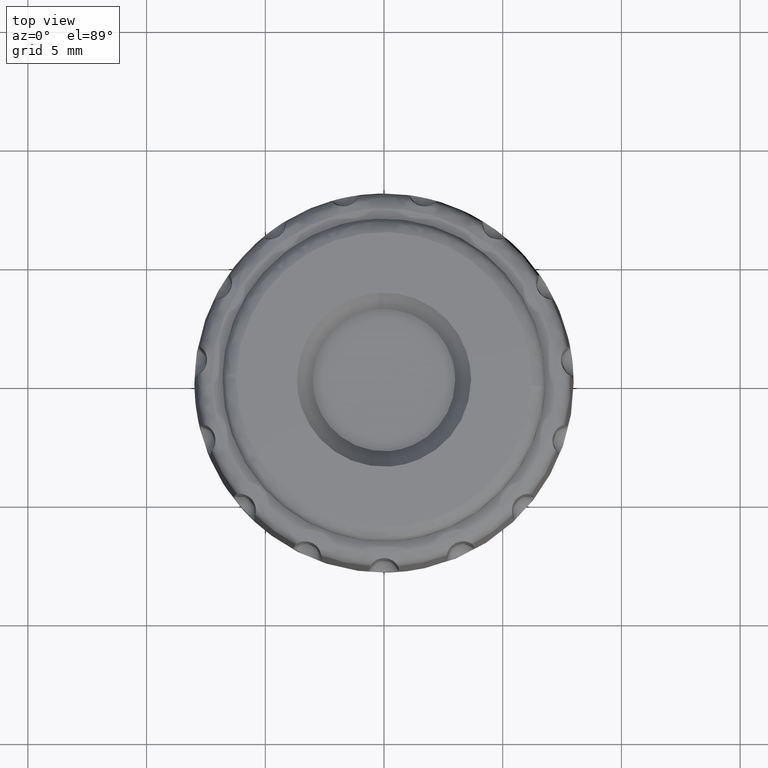
[diagram: clean part render]
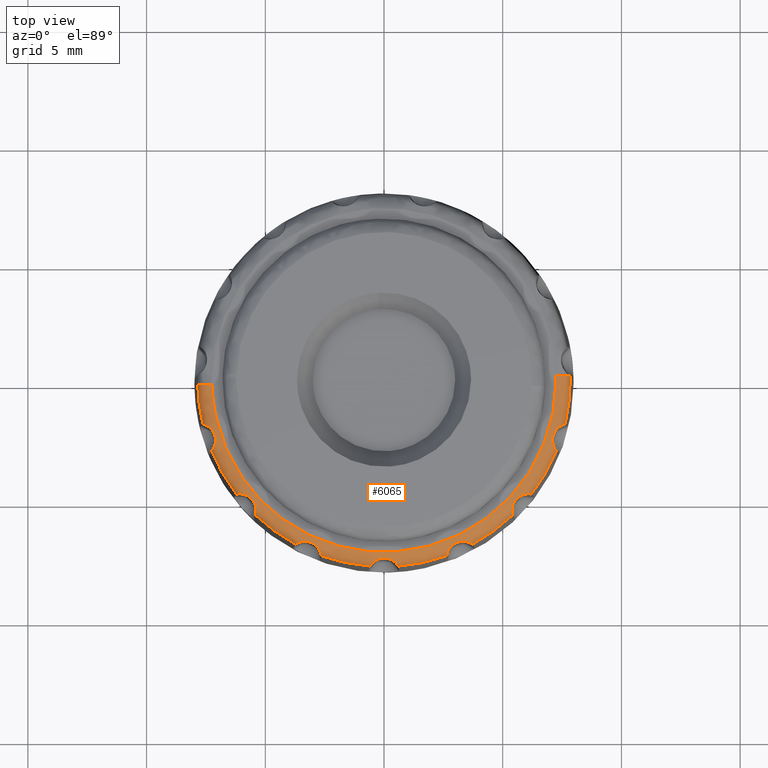
[diagram: same view with one face highlighted and labeled with its STEP entity id]
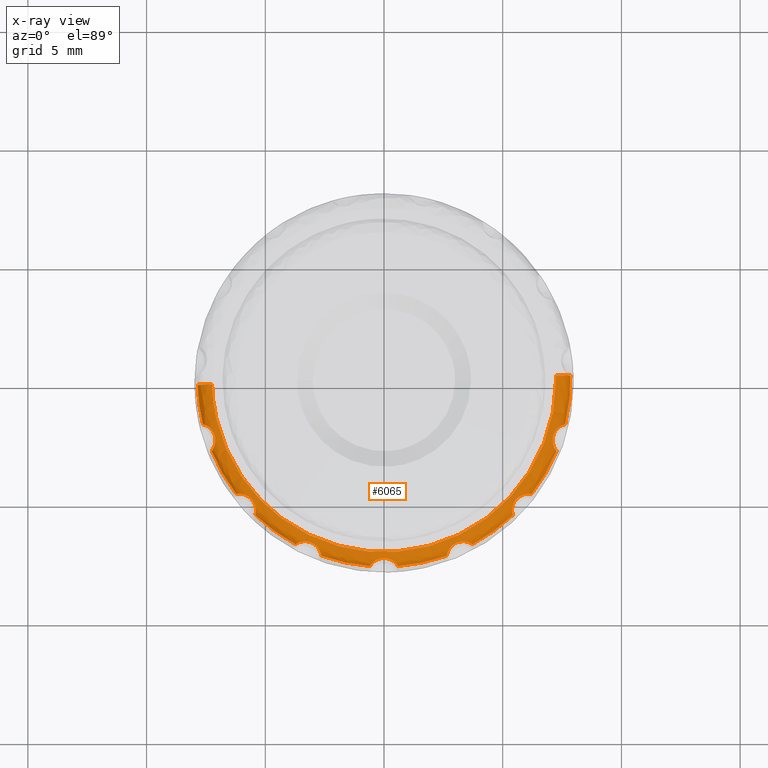
[diagram: x-ray of the same camera — body ghosted, the highlighted face saturated]
A machine part, top view. The second image highlights one B-rep face of the part: STEP entity #6065.
The next image is the same camera in x-ray: the body ghosted, the highlighted face saturated — about 0% of this face is hidden behind the body in this view.
In plain terms, the highlighted face is a freeform B-spline surface patch.
Its self-contained STEP definition (entity closure, byte-faithful):
#4025=CARTESIAN_POINT('',(2.642453804198855,-7.390828693639440,9.412215999999900));
#4026=VERTEX_POINT('',#4025);
#4035=CARTESIAN_POINT('',(3.724309383389160,-6.909155556422830,9.412215999999900));
#4036=VERTEX_POINT('',#4035);
#4044=CARTESIAN_POINT('',(3.724309383389164,-6.909155556422835,9.412215999999901));
#4045=CARTESIAN_POINT('',(3.723510274534049,-6.908621269323681,9.453916978650060));
#4046=CARTESIAN_POINT('',(3.718726594195361,-6.905366586933253,9.494705356962379));
#4047=CARTESIAN_POINT('',(3.705373625240378,-6.896908159288148,9.554538196299594));
#4048=CARTESIAN_POINT('',(3.699834817558524,-6.893467192058466,9.574371121964862));
#4049=CARTESIAN_POINT('',(3.686627218761194,-6.885606921782928,9.612979769021209));
#4050=CARTESIAN_POINT('',(3.671397228896427,-6.876832845626104,9.650306229437662));
#4051=CARTESIAN_POINT('',(3.651951550260185,-6.866698937473784,9.685106089512372));
#4052=CARTESIAN_POINT('',(3.630220293633142,-6.856143162979870,9.718620688036365));
#4053=CARTESIAN_POINT('',(3.618105851194550,-6.850612537686261,9.734842281239374));
#4054=CARTESIAN_POINT('',(3.579028101902881,-6.834286826794213,9.780309983706943));
#4055=CARTESIAN_POINT('',(3.549274123093765,-6.823691731197052,9.806636376722524));
#4056=CARTESIAN_POINT('',(3.498971653221827,-6.810266901760172,9.840786535082380));
#4057=CARTESIAN_POINT('',(3.481278359801497,-6.806225675381493,9.851235461969329));
#4058=CARTESIAN_POINT('',(3.445064722944861,-6.799493875725817,9.869958542599807));
#4059=CARTESIAN_POINT('',(3.426424738211345,-6.796768245783723,9.878318822856283));
#4060=CARTESIAN_POINT('',(3.369045689262734,-6.790830005906769,9.900807544248762));
#4061=CARTESIAN_POINT('',(3.328607685430845,-6.789939921267088,9.912355600197691));
#4062=CARTESIAN_POINT('',(3.268232318098853,-6.793992601597012,9.925299691225188));
#4063=CARTESIAN_POINT('',(3.248045600386612,-6.796220312930737,9.928924707190696));
#4064=CARTESIAN_POINT('',(3.207599352071071,-6.802501284099119,9.935012990686717));
#4065=CARTESIAN_POINT('',(3.187239194634238,-6.806583490673257,9.937483331904756));
#4066=CARTESIAN_POINT('',(3.127143353600776,-6.821443730096823,9.943261753614442));
#4067=CARTESIAN_POINT('',(3.088234823685648,-6.834796148260670,9.945034975578093));
#4068=CARTESIAN_POINT('',(3.031627120004612,-6.860002412020676,9.945033646851440));
#4069=CARTESIAN_POINT('',(3.012955831566789,-6.869328219154999,9.944571324500886));
#4070=CARTESIAN_POINT('',(2.976739288803275,-6.889482747862661,9.942692276019685));
#4071=CARTESIAN_POINT('',(2.959227066449698,-6.900279464710386,9.941283351151188));
#4072=CARTESIAN_POINT('',(2.908428858548818,-6.934736094161994,9.935529924069950));
#4073=CARTESIAN_POINT('',(2.876867819764530,-6.960454798565072,9.929712001450536));
#4074=CARTESIAN_POINT('',(2.818455040349895,-7.017159732418604,9.912308955185338));
#4075=CARTESIAN_POINT('',(2.792560827800090,-7.047269325278182,9.900945160164982));
#4076=CARTESIAN_POINT('',(2.758760807448442,-7.093530916484400,9.878688632862495));
#4077=CARTESIAN_POINT('',(2.748308400199337,-7.109162337772972,9.870385579118487));
#4078=CARTESIAN_POINT('',(2.728981044176840,-7.140652715282258,9.851679695909549));
#4079=CARTESIAN_POINT('',(2.720091961753896,-7.156565901277528,9.841217255451330));
#4080=CARTESIAN_POINT('',(2.696436268701589,-7.202751598737613,9.807307234463059));
#4081=CARTESIAN_POINT('',(2.684334602928209,-7.231978501559123,9.781090340372819));
#4082=CARTESIAN_POINT('',(2.670207384553471,-7.272131818676863,9.735580212510055));
#4083=CARTESIAN_POINT('',(2.666195192812919,-7.284849330891710,9.719398916058831));
#4084=CARTESIAN_POINT('',(2.659456589247657,-7.308136376050923,9.685907587720942));
#4085=CARTESIAN_POINT('',(2.656692187824883,-7.318811999204200,9.668484688392208));
#4086=CARTESIAN_POINT('',(2.649761278270073,-7.347836926562872,9.614197892450914));
#4087=CARTESIAN_POINT('',(2.646939703010941,-7.363180609904086,9.575022528015021));
#4088=CARTESIAN_POINT('',(2.643388591535680,-7.384043697869929,9.495266763563880));
#4089=CARTESIAN_POINT('',(2.642591634739467,-7.389876122439570,9.453970005060405));
#4090=CARTESIAN_POINT('',(2.642453804198851,-7.390828693639467,9.412215999999901));
#4091=B_SPLINE_CURVE_WITH_KNOTS('',3,(#4044,#4045,#4046,#4047,#4048,#4049,#4050,#4051,#4052,#4053,#4054,#4055,#4056,#4057,#4058,#4059,#4060,#4061,#4062,#4063,#4064,#4065,#4066,#4067,#4068,#4069,#4070,#4071,#4072,#4073,#4074,#4075,#4076,#4077,#4078,#4079,#4080,#4081,#4082,#4083,#4084,#4085,#4086,#4087,#4088,#4089,#4090),.UNSPECIFIED.,.F.,.U.,(4,2,2,1,2,2,2,2,2,2,2,2,2,2,2,2,2,2,2,2,2,2,2,4),(0.0,0.062499999999998,0.093749999999998,0.124999999999999,0.156249999999999,0.187499999999999,0.249999999999998,0.281249999999998,0.312499999999998,0.374999999999997,0.406249999999996,0.437499999999996,0.499999999999996,0.531249999999995,0.562499999999995,0.624999999999994,0.687499999999994,0.718749999999994,0.749999999999995,0.812499999999997,0.843749999999997,0.874999999999998,0.937499999999999,1.0),.UNSPECIFIED.);
#4092=EDGE_CURVE('',#4036,#4026,#4091,.T.);
#4115=CARTESIAN_POINT('',(5.420122522255480,-5.677075191486190,9.412215999999900));
#4116=VERTEX_POINT('',#4115);
#4125=CARTESIAN_POINT('',(6.212532657558819,-4.797014578340810,9.412215999999900));
#4126=VERTEX_POINT('',#4125);
#4134=CARTESIAN_POINT('',(6.212532657558823,-4.797014578340805,9.412215999999900));
#4135=CARTESIAN_POINT('',(6.211585321152918,-4.796851509641475,9.453916978650057));
#4136=CARTESIAN_POINT('',(6.205891413118938,-4.795823907410137,9.494705356962378));
#4137=CARTESIAN_POINT('',(6.190252516518003,-4.793527891024000,9.554538196299596));
#4138=CARTESIAN_POINT('',(6.183792996459554,-4.792637247084588,9.574371121964861));
#4139=CARTESIAN_POINT('',(6.168530194626346,-4.790828547276444,9.612979769021205));
#4140=CARTESIAN_POINT('',(6.151048168283324,-4.789007624810040,9.650306229437661));
#4141=CARTESIAN_POINT('',(6.129161825111301,-4.787659109100158,9.685106089512374));
#4142=CARTESIAN_POINT('',(6.105015914048081,-4.786854827629644,9.718620688036369));
#4143=CARTESIAN_POINT('',(6.091699312220396,-4.786729737664953,9.734842281239375));
#4144=CARTESIAN_POINT('',(6.049359747016037,-4.787709811202587,9.780309983706941));
#4145=CARTESIAN_POINT('',(6.017868721211917,-4.790132743205477,9.806636376722523));
#4146=CARTESIAN_POINT('',(5.966454758293185,-4.798328408987923,9.840786535082374));
#4147=CARTESIAN_POINT('',(5.948647415607132,-4.801833075757119,9.851235461969331));
#4148=CARTESIAN_POINT('',(5.912826542558228,-4.810412683848551,9.869958542599814));
#4149=CARTESIAN_POINT('',(5.894689455601482,-4.815504261813231,9.878318822856288));
#4150=CARTESIAN_POINT('',(5.839855786317290,-4.833417571499484,9.900807544248762));
#4151=CARTESIAN_POINT('',(5.802551801562135,-4.849052056651255,9.912355600197691));
#4152=CARTESIAN_POINT('',(5.749044532575349,-4.877311238591019,9.925299691225190));
#4153=CARTESIAN_POINT('',(5.731509140134236,-4.887557031957877,9.928924707190696));
#4154=CARTESIAN_POINT('',(5.697114354835170,-4.909745955903210,9.935012990686715));
#4155=CARTESIAN_POINT('',(5.680174808490173,-4.921756459264525,9.937483331904756));
#4156=CARTESIAN_POINT('',(5.631318729789282,-4.959775144134169,9.943261753614438));
#4157=CARTESIAN_POINT('',(5.601204936762674,-4.987798709940992,9.945034975578093));
#4158=CARTESIAN_POINT('',(5.559743537303516,-5.033850205070541,9.945033646851440));
#4159=CARTESIAN_POINT('',(5.546479614050590,-5.049964050998053,9.944571324500885));
#4160=CARTESIAN_POINT('',(5.521591741266795,-5.083106724177308,9.942692276019681));
#4161=CARTESIAN_POINT('',(5.509984950449341,-5.100092878343893,9.941283351151194));
#4162=CARTESIAN_POINT('',(5.477593252159962,-5.152232068220954,9.935529924069952));
#4163=CARTESIAN_POINT('',(5.459221548033262,-5.188564304771947,9.929712001450543));
#4164=CARTESIAN_POINT('',(5.428922793172160,-5.264125457331597,9.912308955185337));
#4165=CARTESIAN_POINT('',(5.417513927642138,-5.302164064207536,9.900945160164982));
#4166=CARTESIAN_POINT('',(5.405452356892223,-5.358173837531015,9.878688632862497));
#4167=CARTESIAN_POINT('',(5.402261479549792,-5.376705228482249,9.870385579118485));
#4168=CARTESIAN_POINT('',(5.397413351684516,-5.413334263723436,9.851679695909553));
#4169=CARTESIAN_POINT('',(5.395765246666782,-5.431487198050766,9.841217255451332));
#4170=CARTESIAN_POINT('',(5.392940111274488,-5.483301569355208,9.807307234463059));
#4171=CARTESIAN_POINT('',(5.393772341818429,-5.514923864581051,9.781090340372817));
#4172=CARTESIAN_POINT('',(5.397198311055893,-5.557351802420985,9.735580212510056));
#4173=CARTESIAN_POINT('',(5.398705669742660,-5.570601733337298,9.719398916058825));
#4174=CARTESIAN_POINT('',(5.402021343639976,-5.594616344657570,9.685907587720941));
#4175=CARTESIAN_POINT('',(5.403838104401206,-5.605493395051565,9.668484688392208));
#4176=CARTESIAN_POINT('',(5.409311904979462,-5.634828040484269,9.614197892450919));
#4177=CARTESIAN_POINT('',(5.412975105972709,-5.649992830753231,9.575022528015019));
#4178=CARTESIAN_POINT('',(5.418216786578324,-5.670496577157455,9.495266763563880));
#4179=CARTESIAN_POINT('',(5.419860991107655,-5.676148913662064,9.453970005060398));
#4180=CARTESIAN_POINT('',(5.420122522255488,-5.677075191486215,9.412215999999900));
#4181=B_SPLINE_CURVE_WITH_KNOTS('',3,(#4134,#4135,#4136,#4137,#4138,#4139,#4140,#4141,#4142,#4143,#4144,#4145,#4146,#4147,#4148,#4149,#4150,#4151,#4152,#4153,#4154,#4155,#4156,#4157,#4158,#4159,#4160,#4161,#4162,#4163,#4164,#4165,#4166,#4167,#4168,#4169,#4170,#4171,#4172,#4173,#4174,#4175,#4176,#4177,#4178,#4179,#4180),.UNSPECIFIED.,.F.,.U.,(4,2,2,1,2,2,2,2,2,2,2,2,2,2,2,2,2,2,2,2,2,2,2,4),(0.0,0.062499999999999,0.093750000000000,0.125000000000001,0.156250000000002,0.187500000000003,0.250000000000002,0.281250000000002,0.312500000000002,0.375000000000004,0.406250000000004,0.437500000000005,0.500000000000006,0.531250000000006,0.562500000000005,0.625000000000003,0.687500000000001,0.718750000000001,0.750000000000000,0.812499999999999,0.843750000000000,0.875000000000000,0.937500000000000,1.0),.UNSPECIFIED.);
#4182=EDGE_CURVE('',#4126,#4116,#4181,.T.);
#4205=CARTESIAN_POINT('',(7.260602815946850,-2.981703814115975,9.412215999999900));
#4206=VERTEX_POINT('',#4205);
#4215=CARTESIAN_POINT('',(7.626552596149190,-1.855426200154325,9.412215999999900));
#4216=VERTEX_POINT('',#4215);
#4224=CARTESIAN_POINT('',(7.626552596149193,-1.855426200154326,9.412215999999900));
#4225=CARTESIAN_POINT('',(7.625620835263364,-1.855662545914371,9.453916978650060));
#4226=CARTESIAN_POINT('',(7.620001227960693,-1.857039705603392,9.494705356962383));
#4227=CARTESIAN_POINT('',(7.604780511011022,-1.861303102568037,9.554538196299596));
#4228=CARTESIAN_POINT('',(7.598517188276984,-1.863116782347265,9.574371121964864));
#4229=CARTESIAN_POINT('',(7.583838260503060,-1.867672393634866,9.612979769021203));
#4230=CARTESIAN_POINT('',(7.567126998855718,-1.873119478895888,9.650306229437662));
#4231=CARTESIAN_POINT('',(7.546584338713535,-1.880789526245558,9.685106089512372));
#4232=CARTESIAN_POINT('',(7.524198820595683,-1.889875805371366,9.718620688036364));
#4233=CARTESIAN_POINT('',(7.511982620812447,-1.895177879926893,9.734842281239375));
#4234=CARTESIAN_POINT('',(7.473702135162109,-1.913294274275865,9.780309983706944));
#4235=CARTESIAN_POINT('',(7.445919146811503,-1.928316286923864,9.806636376722523));
#4236=CARTESIAN_POINT('',(7.402283632115815,-1.956715342856565,9.840786535082382));
#4237=CARTESIAN_POINT('',(7.387441291489088,-1.967159914050338,9.851235461969329));
#4238=CARTESIAN_POINT('',(7.358206936620483,-1.989567437706576,9.869958542599807));
#4239=CARTESIAN_POINT('',(7.343708814545589,-2.001595843492402,9.878318822856285));
#4240=CARTESIAN_POINT('',(7.300901764493307,-2.040263328759806,9.900807544248766));
#4241=CARTESIAN_POINT('',(7.273181996675119,-2.069719039185449,9.912355600197698));
#4242=CARTESIAN_POINT('',(7.235794718939620,-2.117298453451055,9.925299691225185));
#4243=CARTESIAN_POINT('',(7.223942680426749,-2.133790738097808,9.928924707190696));
#4244=CARTESIAN_POINT('',(7.201546528989185,-2.168050948289898,9.935012990686719));
#4245=CARTESIAN_POINT('',(7.190956595190020,-2.185913023295222,9.937483331904756));
#4246=CARTESIAN_POINT('',(7.161787938672625,-2.240516377608079,9.943261753614440));
#4247=CARTESIAN_POINT('',(7.145675830924058,-2.278365561943771,9.945034975578089));
#4248=CARTESIAN_POINT('',(7.126529788318251,-2.337299566570263,9.945033646851439));
#4249=CARTESIAN_POINT('',(7.120966683079619,-2.357415220940403,9.944571324500885));
#4250=CARTESIAN_POINT('',(7.111710819579084,-2.397815369306824,9.942692276019681));
#4251=CARTESIAN_POINT('',(7.108016379874477,-2.418053900422498,9.941283351151192));
#4252=CARTESIAN_POINT('',(7.099632010100171,-2.478860311125598,9.935529924069957));
#4253=CARTESIAN_POINT('',(7.097626275176259,-2.519523906056831,9.929712001450543));
#4254=CARTESIAN_POINT('',(7.100680474839721,-2.600876067593521,9.912308955185335));
#4255=CARTESIAN_POINT('',(7.105729652825915,-2.640266467787070,9.900945160164982));
#4256=CARTESIAN_POINT('',(7.117492086836324,-2.696339824587368,9.878688632862499));
#4257=CARTESIAN_POINT('',(7.122114471081282,-2.714566939353395,9.870385579118485));
#4258=CARTESIAN_POINT('',(7.132583856724989,-2.750001139368933,9.851679695909551));
#4259=CARTESIAN_POINT('',(7.138461701442597,-2.767255014768903,9.841217255451333));
#4260=CARTESIAN_POINT('',(7.156955615285195,-2.815738884400379,9.807307234463064));
#4261=CARTESIAN_POINT('',(7.170577841924834,-2.844288789906472,9.781090340372815));
#4262=CARTESIAN_POINT('',(7.190964617569385,-2.881655172570360,9.735580212510055));
#4263=CARTESIAN_POINT('',(7.197730890672610,-2.893146488760872,9.719398916058827));
#4264=CARTESIAN_POINT('',(7.210527531893706,-2.913736321779032,9.685907587720941));
#4265=CARTESIAN_POINT('',(7.216611320398571,-2.922934058585719,9.668484688392210));
#4266=CARTESIAN_POINT('',(7.233543361261990,-2.947506195400254,9.614197892450916));
#4267=CARTESIAN_POINT('',(7.243057937776749,-2.959869962591664,9.575022528015019));
#4268=CARTESIAN_POINT('',(7.256186076267357,-2.976469083410297,9.495266763563878));
#4269=CARTESIAN_POINT('',(7.259987144221982,-2.980963991518357,9.453970005060404));
#4270=CARTESIAN_POINT('',(7.260602815946864,-2.981703814115995,9.412215999999900));
#4271=B_SPLINE_CURVE_WITH_KNOTS('',3,(#4224,#4225,#4226,#4227,#4228,#4229,#4230,#4231,#4232,#4233,#4234,#4235,#4236,#4237,#4238,#4239,#4240,#4241,#4242,#4243,#4244,#4245,#4246,#4247,#4248,#4249,#4250,#4251,#4252,#4253,#4254,#4255,#4256,#4257,#4258,#4259,#4260,#4261,#4262,#4263,#4264,#4265,#4266,#4267,#4268,#4269,#4270),.UNSPECIFIED.,.F.,.U.,(4,2,2,1,2,2,2,2,2,2,2,2,2,2,2,2,2,2,2,2,2,2,2,4),(0.0,0.062499999999998,0.093749999999998,0.124999999999998,0.156249999999998,0.187499999999999,0.249999999999998,0.281249999999997,0.312499999999997,0.374999999999998,0.406249999999997,0.437499999999997,0.499999999999997,0.531249999999996,0.562499999999996,0.624999999999996,0.687499999999996,0.718749999999997,0.749999999999997,0.812499999999997,0.843749999999998,0.874999999999998,0.937499999999999,1.0),.UNSPECIFIED.);
#4272=EDGE_CURVE('',#4216,#4206,#4271,.T.);
#4390=CARTESIAN_POINT('',(7.846542354548671,0.197246650876180,9.411476093503897));
#4391=VERTEX_POINT('',#4390);
#5112=CARTESIAN_POINT('',(-7.626552596149190,-1.855426200154335,9.412215999999900));
#5113=VERTEX_POINT('',#5112);
#5122=CARTESIAN_POINT('',(-7.260602815946850,-2.981703814115980,9.412215999999900));
#5123=VERTEX_POINT('',#5122);
#5131=CARTESIAN_POINT('',(-7.260602815946850,-2.981703814115980,9.412215999999900));
#5132=CARTESIAN_POINT('',(-7.259987926107719,-2.980964931072205,9.453916978649888));
#5133=CARTESIAN_POINT('',(-7.256251042453431,-2.976547663183666,9.494705356962120));
#5134=CARTESIAN_POINT('',(-7.246443185635092,-2.964151989633209,9.554538196299280));
#5135=CARTESIAN_POINT('',(-7.242442105328619,-2.959003203136056,9.574371121964544));
#5136=CARTESIAN_POINT('',(-7.233244324430353,-2.946689578919660,9.612979769020916));
#5137=CARTESIAN_POINT('',(-7.228084914656790,-2.939574842393430,9.631642851175347));
#5138=CARTESIAN_POINT('',(-7.216870835920537,-2.923320225566211,9.667706159474747));
#5139=CARTESIAN_POINT('',(-7.210815325696456,-2.914180289902235,9.685106089512116));
#5140=CARTESIAN_POINT('',(-7.198045841979595,-2.893671458259246,9.718620688036117));
#5141=CARTESIAN_POINT('',(-7.191279209978571,-2.882201487766746,9.734842281239136));
#5142=CARTESIAN_POINT('',(-7.170958195957556,-2.845044311945780,9.780309983706756));
#5143=CARTESIAN_POINT('',(-7.157311003721637,-2.816560817606747,9.806636376722356));
#5144=CARTESIAN_POINT('',(-7.138701677030786,-2.767937186718697,9.840786535082231));
#5145=CARTESIAN_POINT('',(-7.132833136141676,-2.750763242194081,9.851235461969200));
#5146=CARTESIAN_POINT('',(-7.122352858178905,-2.715451652102273,9.869958542599699));
#5147=CARTESIAN_POINT('',(-7.117693750563284,-2.697198685064745,9.878318822856185));
#5148=CARTESIAN_POINT('',(-7.105790297175326,-2.640754679638803,9.900807544248686));
#5149=CARTESIAN_POINT('',(-7.100678166114259,-2.600631238602562,9.912355600197634));
#5150=CARTESIAN_POINT('',(-7.098397701070846,-2.540162993402981,9.925299691225147));
#5151=CARTESIAN_POINT('',(-7.098503122187911,-2.519854001400220,9.928924707190658));
#5152=CARTESIAN_POINT('',(-7.100521901357668,-2.478972781600853,9.935012990686694));
#5153=CARTESIAN_POINT('',(-7.102453529208297,-2.458297452456839,9.937483331904735));
#5154=CARTESIAN_POINT('',(-7.110950636773427,-2.396977504737727,9.943261753614433));
#5155=CARTESIAN_POINT('',(-7.120162860153449,-2.356886412068957,9.945034975578091));
#5156=CARTESIAN_POINT('',(-7.139313925088294,-2.297954039296090,9.945033646851439));
#5157=CARTESIAN_POINT('',(-7.146636963387716,-2.278410221841456,9.944571324500888));
#5158=CARTESIAN_POINT('',(-7.162895423918381,-2.240285355174884,9.942692276019690));
#5159=CARTESIAN_POINT('',(-7.171802469530512,-2.221740502387255,9.941283351151201));
#5160=CARTESIAN_POINT('',(-7.200760483352096,-2.167618873858381,9.935529924069970));
#5161=CARTESIAN_POINT('',(-7.223039271118207,-2.133542393098344,9.929712001450563));
#5162=CARTESIAN_POINT('',(-7.273327771343529,-2.069522325405766,9.912308955185376));
#5163=CARTESIAN_POINT('',(-7.300565738457672,-2.040622654590401,9.900945160165012));
#5164=CARTESIAN_POINT('',(-7.343040839641060,-2.002172141249679,9.878688632862533));
#5165=CARTESIAN_POINT('',(-7.357494056301074,-1.990143064935153,9.870385579118524));
#5166=CARTESIAN_POINT('',(-7.386791667403410,-1.967629945422433,9.851679695909603));
#5167=CARTESIAN_POINT('',(-7.401688517175248,-1.957126177445298,9.841217255451381));
#5168=CARTESIAN_POINT('',(-7.445148511309889,-1.928772352774199,9.807307234463101));
#5169=CARTESIAN_POINT('',(-7.472950337573418,-1.913681937954133,9.781090340372858));
#5170=CARTESIAN_POINT('',(-7.511406994191717,-1.895434945426389,9.735580212510104));
#5171=CARTESIAN_POINT('',(-7.523635450307031,-1.890115390883583,9.719398916058870));
#5172=CARTESIAN_POINT('',(-7.546090550721065,-1.880979543049183,9.685907587720978));
#5173=CARTESIAN_POINT('',(-7.556418733061124,-1.877114378824008,9.668484688392240));
#5174=CARTESIAN_POINT('',(-7.584560181505989,-1.867187506463672,9.614197892450942));
#5175=CARTESIAN_POINT('',(-7.599524875618601,-1.862777536448510,9.575022528015040));
#5176=CARTESIAN_POINT('',(-7.619902481180229,-1.857065091809382,9.495266763563883));
#5177=CARTESIAN_POINT('',(-7.625619650448626,-1.855662846448497,9.453970005060411));
#5178=CARTESIAN_POINT('',(-7.626552596149215,-1.855426200154325,9.412215999999900));
#5179=B_SPLINE_CURVE_WITH_KNOTS('',3,(#5131,#5132,#5133,#5134,#5135,#5136,#5137,#5138,#5139,#5140,#5141,#5142,#5143,#5144,#5145,#5146,#5147,#5148,#5149,#5150,#5151,#5152,#5153,#5154,#5155,#5156,#5157,#5158,#5159,#5160,#5161,#5162,#5163,#5164,#5165,#5166,#5167,#5168,#5169,#5170,#5171,#5172,#5173,#5174,#5175,#5176,#5177,#5178),.UNSPECIFIED.,.F.,.U.,(4,2,2,2,2,2,2,2,2,2,2,2,2,2,2,2,2,2,2,2,2,2,2,4),(0.0,0.062500000000002,0.093750000000001,0.125000000000000,0.156250000000000,0.187499999999999,0.249999999999998,0.281249999999998,0.312499999999997,0.374999999999996,0.406249999999995,0.437499999999994,0.499999999999993,0.531249999999993,0.562499999999992,0.624999999999991,0.687499999999990,0.718749999999990,0.749999999999990,0.812499999999993,0.843749999999994,0.874999999999995,0.937499999999998,1.0),.UNSPECIFIED.);
#5180=EDGE_CURVE('',#5123,#5113,#5179,.T.);
#5203=CARTESIAN_POINT('',(-6.212532657558811,-4.797014578340810,9.412215999999900));
#5204=VERTEX_POINT('',#5203);
#5213=CARTESIAN_POINT('',(-5.420122522255470,-5.677075191486190,9.412215999999900));
#5214=VERTEX_POINT('',#5213);
#5222=CARTESIAN_POINT('',(-5.420122522255473,-5.677075191486201,9.412215999999901));
#5223=CARTESIAN_POINT('',(-5.419861323244833,-5.676150090008798,9.453916978650058));
#5224=CARTESIAN_POINT('',(-5.418244174869260,-5.670594787480882,9.494705356962383));
#5225=CARTESIAN_POINT('',(-5.414326026472225,-5.655281561456332,9.554538196299598));
#5226=CARTESIAN_POINT('',(-5.412765057868344,-5.648950524966938,9.574371121964861));
#5227=CARTESIAN_POINT('',(-5.409370869086213,-5.633960394970606,9.612979769021207));
#5228=CARTESIAN_POINT('',(-5.405732552475167,-5.616764475224208,9.650306229437666));
#5229=CARTESIAN_POINT('',(-5.402103678257118,-5.595138986004929,9.685106089512372));
#5230=CARTESIAN_POINT('',(-5.398779867747020,-5.571209419075092,9.718620688036371));
#5231=CARTESIAN_POINT('',(-5.397263499113245,-5.557978842447334,9.734842281239374));
#5232=CARTESIAN_POINT('',(-5.393812514019264,-5.515768772230453,9.780309983706943));
#5233=CARTESIAN_POINT('',(-5.392930464413100,-5.484196992201785,9.806636376722523));
#5234=CARTESIAN_POINT('',(-5.395707010946468,-5.432208000001755,9.840786535082376));
#5235=CARTESIAN_POINT('',(-5.397331104618549,-5.414131870370502,9.851235461969333));
#5236=CARTESIAN_POINT('',(-5.402119411906450,-5.377610414562922,9.869958542599809));
#5237=CARTESIAN_POINT('',(-5.405287255846558,-5.359040469645984,9.878318822856283));
#5238=CARTESIAN_POINT('',(-5.417370755362449,-5.302634734205935,9.900807544248766));
#5239=CARTESIAN_POINT('',(-5.429020264968477,-5.263900855875553,9.912355600197692));
#5240=CARTESIAN_POINT('',(-5.451531607551925,-5.207732816445466,9.925299691225185));
#5241=CARTESIAN_POINT('',(-5.459888325766022,-5.189222507683309,9.928924707190694));
#5242=CARTESIAN_POINT('',(-5.478360462412588,-5.152696766495335,9.935012990686719));
#5243=CARTESIAN_POINT('',(-5.488534506231916,-5.134594577298195,9.937483331904755));
#5244=CARTESIAN_POINT('',(-5.521238069939995,-5.082032102603441,9.943261753614440));
#5245=CARTESIAN_POINT('',(-5.545960371212941,-5.049154015816825,9.945034975578091));
#5246=CARTESIAN_POINT('',(-5.587425695063333,-5.003106054225011,9.945033646851437));
#5247=CARTESIAN_POINT('',(-5.602064810142304,-4.988230436579360,9.944571324500885));
#5248=CARTESIAN_POINT('',(-5.632424433194018,-4.960014549470724,9.942692276019681));
#5249=CARTESIAN_POINT('',(-5.648104295423170,-4.946695805275946,9.941283351151192));
#5250=CARTESIAN_POINT('',(-5.696572006917852,-4.909031522705126,9.935529924069952));
#5251=CARTESIAN_POINT('',(-5.730784845675542,-4.886962707842144,9.929712001450543));
#5252=CARTESIAN_POINT('',(-5.802764984050822,-4.848931641570587,9.912308955185337));
#5253=CARTESIAN_POINT('',(-5.839402660276769,-4.833609157878088,9.900945160164980));
#5254=CARTESIAN_POINT('',(-5.893844828746500,-4.815759046141292,9.878688632862493));
#5255=CARTESIAN_POINT('',(-5.911941165294053,-4.810648590940463,9.870385579118485));
#5256=CARTESIAN_POINT('',(-5.947862775492144,-4.801998244862162,9.851679695909551));
#5257=CARTESIAN_POINT('',(-5.965743992261050,-4.798461670007127,9.841217255451335));
#5258=CARTESIAN_POINT('',(-6.016979211956980,-4.790235934394477,9.807307234463057));
#5259=CARTESIAN_POINT('',(-6.048515268720721,-4.787758175967467,9.781090340372815));
#5260=CARTESIAN_POINT('',(-6.091068893177456,-4.786730450244957,9.735580212510058));
#5261=CARTESIAN_POINT('',(-6.104403801472972,-4.786844556546039,9.719398916058829));
#5262=CARTESIAN_POINT('',(-6.128633440536924,-4.787631856417542,9.685907587720944));
#5263=CARTESIAN_POINT('',(-6.139640808521270,-4.788301703410661,9.668484688392210));
#5264=CARTESIAN_POINT('',(-6.169386923659636,-4.790679212529034,9.614197892450914));
#5265=CARTESIAN_POINT('',(-6.184851548391250,-4.792737193901361,9.575022528015019));
#5266=CARTESIAN_POINT('',(-6.205790877945978,-4.795806934929309,9.495266763563876));
#5267=CARTESIAN_POINT('',(-6.211584116532550,-4.796851302285497,9.453970005060404));
#5268=CARTESIAN_POINT('',(-6.212532657558839,-4.797014578340819,9.412215999999900));
#5269=B_SPLINE_CURVE_WITH_KNOTS('',3,(#5222,#5223,#5224,#5225,#5226,#5227,#5228,#5229,#5230,#5231,#5232,#5233,#5234,#5235,#5236,#5237,#5238,#5239,#5240,#5241,#5242,#5243,#5244,#5245,#5246,#5247,#5248,#5249,#5250,#5251,#5252,#5253,#5254,#5255,#5256,#5257,#5258,#5259,#5260,#5261,#5262,#5263,#5264,#5265,#5266,#5267,#5268),.UNSPECIFIED.,.F.,.U.,(4,2,2,1,2,2,2,2,2,2,2,2,2,2,2,2,2,2,2,2,2,2,2,4),(0.0,0.062500000000004,0.093750000000005,0.125000000000006,0.156250000000007,0.187500000000008,0.250000000000007,0.281250000000008,0.312500000000009,0.375000000000009,0.406250000000009,0.437500000000009,0.500000000000009,0.531250000000008,0.562500000000007,0.625000000000005,0.687500000000003,0.718750000000002,0.750000000000002,0.812500000000001,0.843750000000001,0.875000000000000,0.937500000000000,1.0),.UNSPECIFIED.);
#5270=EDGE_CURVE('',#5214,#5204,#5269,.T.);
#5293=CARTESIAN_POINT('',(-3.724309383389155,-6.909155556422840,9.412215999999900));
#5294=VERTEX_POINT('',#5293);
#5303=CARTESIAN_POINT('',(-2.642453804198845,-7.390828693639440,9.412215999999900));
#5304=VERTEX_POINT('',#5303);
#5312=CARTESIAN_POINT('',(-2.642453804198845,-7.390828693639446,9.412215999999901));
#5313=CARTESIAN_POINT('',(-2.642591459698558,-7.389877332178147,9.453916978650060));
#5314=CARTESIAN_POINT('',(-2.643373666247192,-7.384144557286298,9.494705356962381));
#5315=CARTESIAN_POINT('',(-2.646022709724599,-7.368561574683635,9.554538196299598));
#5316=CARTESIAN_POINT('',(-2.647171758475887,-7.362142981926691,9.574371121964861));
#5317=CARTESIAN_POINT('',(-2.650168047885569,-7.347068275807860,9.612979769021210));
#5318=CARTESIAN_POINT('',(-2.653838490944332,-7.329879184748728,9.650306229437664));
#5319=CARTESIAN_POINT('',(-2.659319228276000,-7.308647321185562,9.685106089512376));
#5320=CARTESIAN_POINT('',(-2.666015808005733,-7.285434658484356,9.718620688036369));
#5321=CARTESIAN_POINT('',(-2.670011896651767,-7.272731162616312,9.734842281239372));
#5322=CARTESIAN_POINT('',(-2.684027647158775,-7.232766702610471,9.780309983706941));
#5323=CARTESIAN_POINT('',(-2.696063254572437,-7.203565684479751,9.806636376722523));
#5324=CARTESIAN_POINT('',(-2.719745584210262,-7.157200700024327,9.840786535082374));
#5325=CARTESIAN_POINT('',(-2.728581491893197,-7.141347912316157,9.851235461969329));
#5326=CARTESIAN_POINT('',(-2.747810442601272,-7.109931482288943,9.869958542599811));
#5327=CARTESIAN_POINT('',(-2.758257489100896,-7.094255471671390,9.878318822856285));
#5328=CARTESIAN_POINT('',(-2.792238594679171,-7.047641070304843,9.900807544248766));
#5329=CARTESIAN_POINT('',(-2.818635438908930,-7.016994194129878,9.912355600197696));
#5330=CARTESIAN_POINT('',(-2.862046173477420,-6.974838324757351,9.925299691225188));
#5331=CARTESIAN_POINT('',(-2.877209236290922,-6.961327299781655,9.928924707190697));
#5332=CARTESIAN_POINT('',(-2.908940730173997,-6.935472669682409,9.935012990686722));
#5333=CARTESIAN_POINT('',(-2.925598005357369,-6.923073653397555,9.937483331904756));
#5334=CARTESIAN_POINT('',(-2.976853281940713,-6.888357181116953,9.943261753614442));
#5335=CARTESIAN_POINT('',(-3.012810950621428,-6.868377020105924,9.945034975578093));
#5336=CARTESIAN_POINT('',(-3.069420802192967,-6.843175580586980,9.945033646851442));
#5337=CARTESIAN_POINT('',(-3.088844758062140,-6.835540292181987,9.944571324500885));
#5338=CARTESIAN_POINT('',(-3.128056089000749,-6.822112167845642,9.942692276019685));
#5339=CARTESIAN_POINT('',(-3.147797577220421,-6.816322464111973,9.941283351151192));
#5340=CARTESIAN_POINT('',(-3.207394478755434,-6.801628024124946,9.935529924069956));
#5341=CARTESIAN_POINT('',(-3.247625657869611,-6.795382773737710,9.929712001450541));
#5342=CARTESIAN_POINT('',(-3.328851414550720,-6.789916625746922,9.912308955185344));
#5343=CARTESIAN_POINT('',(-3.368553812826189,-6.790820725808072,9.900945160164984));
#5344=CARTESIAN_POINT('',(-3.425549503062277,-6.796657462157654,9.878688632862499));
#5345=CARTESIAN_POINT('',(-3.444159938508239,-6.799349272201771,9.870385579118485));
#5346=CARTESIAN_POINT('',(-3.480494375061243,-6.806057422980751,9.851679695909551));
#5347=CARTESIAN_POINT('',(-3.498268134002125,-6.810099547169014,9.841217255451333));
#5348=CARTESIAN_POINT('',(-3.548419544316582,-6.823424205030685,9.807307234463059));
#5349=CARTESIAN_POINT('',(-3.578236960870012,-6.833987529938488,9.781090340372817));
#5350=CARTESIAN_POINT('',(-3.617529644909066,-6.850356774135229,9.735580212510056));
#5351=CARTESIAN_POINT('',(-3.629665278596659,-6.855884811264109,9.719398916058829));
#5352=CARTESIAN_POINT('',(-3.651479931597024,-6.866459127541335,9.685907587720944));
#5353=CARTESIAN_POINT('',(-3.661263211302368,-6.871548163122269,9.668484688392212));
#5354=CARTESIAN_POINT('',(-3.687470619591850,-6.885818960793788,9.614197892450918));
#5355=CARTESIAN_POINT('',(-3.700761200834669,-6.893989049878154,9.575022528015017));
#5356=CARTESIAN_POINT('',(-3.718641654074654,-6.905310190461725,9.495266763563885));
#5357=CARTESIAN_POINT('',(-3.723509258397861,-6.908620589931318,9.453970005060407));
#5358=CARTESIAN_POINT('',(-3.724309383389178,-6.909155556422850,9.412215999999900));
#5359=B_SPLINE_CURVE_WITH_KNOTS('',3,(#5312,#5313,#5314,#5315,#5316,#5317,#5318,#5319,#5320,#5321,#5322,#5323,#5324,#5325,#5326,#5327,#5328,#5329,#5330,#5331,#5332,#5333,#5334,#5335,#5336,#5337,#5338,#5339,#5340,#5341,#5342,#5343,#5344,#5345,#5346,#5347,#5348,#5349,#5350,#5351,#5352,#5353,#5354,#5355,#5356,#5357,#5358),.UNSPECIFIED.,.F.,.U.,(4,2,2,1,2,2,2,2,2,2,2,2,2,2,2,2,2,2,2,2,2,2,2,4),(0.0,0.062500000000004,0.093750000000005,0.125000000000006,0.156250000000007,0.187500000000007,0.250000000000007,0.281250000000007,0.312500000000007,0.375000000000008,0.406250000000008,0.437500000000008,0.500000000000009,0.531250000000009,0.562500000000009,0.625000000000009,0.687500000000010,0.718750000000009,0.750000000000008,0.812500000000006,0.843750000000005,0.875000000000004,0.937500000000002,1.0),.UNSPECIFIED.);
#5360=EDGE_CURVE('',#5304,#5294,#5359,.T.);
#5394=CARTESIAN_POINT('',(-6.212532657558810,-4.797014578340811,9.412215999999900));
#5395=CARTESIAN_POINT('',(-6.858861213916725,-3.959965368189105,9.412215999999900));
#5396=CARTESIAN_POINT('',(-7.260602815946842,-2.981703814115982,9.412215999999900));
#5404=(BOUNDED_CURVE()B_SPLINE_CURVE(2,(#5394,#5395,#5396),.UNSPECIFIED.,.F.,.U.)CURVE()GEOMETRIC_REPRESENTATION_ITEM()QUASI_UNIFORM_CURVE()RATIONAL_B_SPLINE_CURVE((1.0,0.991044904464576,1.0))REPRESENTATION_ITEM(''));
#5405=EDGE_CURVE('',#5204,#5123,#5404,.T.);
#5410=CARTESIAN_POINT('',(-7.846528199455451,-0.197246295044962,9.412216000908224));
#5411=VERTEX_POINT('',#5410);
#5412=CARTESIAN_POINT('',(-7.626552596149190,-1.855426200154335,9.412215999999900));
#5413=CARTESIAN_POINT('',(-7.825390208451688,-1.038123141556493,9.412216000454061));
#5414=CARTESIAN_POINT('',(-7.846528199455451,-0.197246295044962,9.412216000908224));
#5422=(BOUNDED_CURVE()B_SPLINE_CURVE(2,(#5412,#5413,#5414),.UNSPECIFIED.,.F.,.U.)B_SPLINE_CURVE_WITH_KNOTS((3,3),(0.0,0.894510632381245),.UNSPECIFIED.)CURVE()GEOMETRIC_REPRESENTATION_ITEM()RATIONAL_B_SPLINE_CURVE((1.0,0.993639392015280,0.998658046972042))REPRESENTATION_ITEM(''));
#5423=EDGE_CURVE('',#5113,#5411,#5422,.T.);
#5618=CARTESIAN_POINT('',(7.846542354548671,0.197246650876180,9.411476093503897));
#5619=CARTESIAN_POINT('',(7.872702143840723,-0.843680853058553,9.411846046751897));
#5620=CARTESIAN_POINT('',(7.626552596149190,-1.855426200154325,9.412215999999900));
#5628=(BOUNDED_CURVE()B_SPLINE_CURVE(2,(#5618,#5619,#5620),.UNSPECIFIED.,.F.,.U.)B_SPLINE_CURVE_WITH_KNOTS((3,3),(0.015262551297713,1.0),.UNSPECIFIED.)CURVE()GEOMETRIC_REPRESENTATION_ITEM()RATIONAL_B_SPLINE_CURVE((0.999730816887944,0.991181582069561,1.0))REPRESENTATION_ITEM(''));
#5629=EDGE_CURVE('',#4391,#4216,#5628,.T.);
#5634=CARTESIAN_POINT('',(7.260602815946846,-2.981703814115972,9.412215999999900));
#5635=CARTESIAN_POINT('',(6.858861213916730,-3.959965368189098,9.412215999999900));
#5636=CARTESIAN_POINT('',(6.212532657558815,-4.797014578340803,9.412215999999900));
#5644=(BOUNDED_CURVE()B_SPLINE_CURVE(2,(#5634,#5635,#5636),.UNSPECIFIED.,.F.,.U.)CURVE()GEOMETRIC_REPRESENTATION_ITEM()QUASI_UNIFORM_CURVE()RATIONAL_B_SPLINE_CURVE((1.0,0.991044904464576,1.0))REPRESENTATION_ITEM(''));
#5645=EDGE_CURVE('',#4206,#4126,#5644,.T.);
#5650=CARTESIAN_POINT('',(5.420122522255479,-5.677075191486185,9.412215999999900));
#5651=CARTESIAN_POINT('',(4.655218486020987,-6.407358560002458,9.412215999999900));
#5652=CARTESIAN_POINT('',(3.724309383389160,-6.909155556422829,9.412215999999900));
#5660=(BOUNDED_CURVE()B_SPLINE_CURVE(2,(#5650,#5651,#5652),.UNSPECIFIED.,.F.,.U.)CURVE()GEOMETRIC_REPRESENTATION_ITEM()QUASI_UNIFORM_CURVE()RATIONAL_B_SPLINE_CURVE((1.0,0.991044904464576,1.0))REPRESENTATION_ITEM(''));
#5661=EDGE_CURVE('',#4116,#4036,#5660,.T.);
#5666=CARTESIAN_POINT('',(0.592119182542941,-7.826640771091620,9.412215999999900));
#5667=VERTEX_POINT('',#5666);
#5668=CARTESIAN_POINT('',(2.642453804198855,-7.390828693639435,9.412215999999900));
#5669=CARTESIAN_POINT('',(1.646646190559938,-7.746861247766269,9.412215999999900));
#5670=CARTESIAN_POINT('',(0.592119182542945,-7.826640771091624,9.412215999999900));
#5678=(BOUNDED_CURVE()B_SPLINE_CURVE(2,(#5668,#5669,#5670),.UNSPECIFIED.,.F.,.U.)CURVE()GEOMETRIC_REPRESENTATION_ITEM()QUASI_UNIFORM_CURVE()RATIONAL_B_SPLINE_CURVE((1.0,0.991044904464576,1.0))REPRESENTATION_ITEM(''));
#5679=EDGE_CURVE('',#4026,#5667,#5678,.T.);
#5738=CARTESIAN_POINT('',(-0.592119182542941,-7.826640771091631,9.412215999999900));
#5739=VERTEX_POINT('',#5738);
#5747=CARTESIAN_POINT('',(-0.592119182542935,-7.826640771091624,9.412215999999900));
#5748=CARTESIAN_POINT('',(-1.646646190559929,-7.746861247766270,9.412215999999900));
#5749=CARTESIAN_POINT('',(-2.642453804198840,-7.390828693639440,9.412215999999900));
#5757=(BOUNDED_CURVE()B_SPLINE_CURVE(2,(#5747,#5748,#5749),.UNSPECIFIED.,.F.,.U.)CURVE()GEOMETRIC_REPRESENTATION_ITEM()QUASI_UNIFORM_CURVE()RATIONAL_B_SPLINE_CURVE((1.0,0.991044904464576,1.0))REPRESENTATION_ITEM(''));
#5758=EDGE_CURVE('',#5739,#5304,#5757,.T.);
#5763=CARTESIAN_POINT('',(-3.724309383389151,-6.909155556422833,9.412215999999900));
#5764=CARTESIAN_POINT('',(-4.655218486020978,-6.407358560002463,9.412215999999900));
#5765=CARTESIAN_POINT('',(-5.420122522255472,-5.677075191486192,9.412215999999900));
#5773=(BOUNDED_CURVE()B_SPLINE_CURVE(2,(#5763,#5764,#5765),.UNSPECIFIED.,.F.,.U.)CURVE()GEOMETRIC_REPRESENTATION_ITEM()QUASI_UNIFORM_CURVE()RATIONAL_B_SPLINE_CURVE((1.0,0.991044904464576,1.0))REPRESENTATION_ITEM(''));
#5774=EDGE_CURVE('',#5294,#5214,#5773,.T.);
#5787=CARTESIAN_POINT('',(-7.246842343037660,-0.182171371536449,9.999996039066591));
#5788=VERTEX_POINT('',#5787);
#5804=CARTESIAN_POINT('',(7.249131483860610,0.0,9.999996039066680));
#5805=VERTEX_POINT('',#5804);
#5806=CARTESIAN_POINT('',(7.249131483860610,0.0,9.999996039066680));
#5807=CARTESIAN_POINT('',(7.249164962928817,-0.397116960767223,9.999996039066662));
#5808=CARTESIAN_POINT('',(7.195810313431536,-1.044257492168305,9.999996039066707));
#5809=CARTESIAN_POINT('',(6.996874965683401,-1.950529423721694,9.999996039066668));
#5810=CARTESIAN_POINT('',(6.723512699970525,-2.760123717798900,9.999996039066698));
#5811=CARTESIAN_POINT('',(6.344875703817274,-3.543104032818979,9.999996039066671));
#5812=CARTESIAN_POINT('',(5.898231114328465,-4.236614261151314,9.999996039066673));
#5813=CARTESIAN_POINT('',(5.446972436600822,-4.799646530892549,9.999996039066673));
#5814=CARTESIAN_POINT('',(4.965250895833593,-5.296448219067195,9.999996039066666));
#5815=CARTESIAN_POINT('',(4.349196949408161,-5.822214032302698,9.999996039066666));
#5816=CARTESIAN_POINT('',(3.599062453014382,-6.318763126420996,9.999996039066662));
#5817=CARTESIAN_POINT('',(2.735522743399041,-6.733525230142780,9.999996039066652));
#5818=CARTESIAN_POINT('',(1.939037118780785,-7.000110365708903,9.999996039066653));
#5819=CARTESIAN_POINT('',(1.046772755270594,-7.193515394932645,9.999996039066643));
#5820=CARTESIAN_POINT('',(0.076566462106351,-7.276778821012428,9.999996039066634));
#5821=CARTESIAN_POINT('',(-0.938744480602293,-7.209085674531999,9.999996039066627));
#5822=CARTESIAN_POINT('',(-1.906660740755237,-7.015466362124744,9.999996039066625));
#5823=CARTESIAN_POINT('',(-2.800084385463740,-6.711149528272437,9.999996039066625));
#5824=CARTESIAN_POINT('',(-3.695759966966820,-6.261518526453452,9.999996039066613));
#5825=CARTESIAN_POINT('',(-4.414130210048975,-5.770928439980809,9.999996039066605));
#5826=CARTESIAN_POINT('',(-5.092417441782352,-5.182226890607874,9.999996039066607));
#5827=CARTESIAN_POINT('',(-5.639421255503824,-4.583569911049192,9.999996039066611));
#5828=CARTESIAN_POINT('',(-6.100599803289901,-3.935632194696815,9.999996039066600));
#5829=CARTESIAN_POINT('',(-6.439574359296097,-3.349391997820551,9.999996039066604));
#5830=CARTESIAN_POINT('',(-6.781582586706900,-2.615365177971971,9.999996039066595));
#5831=CARTESIAN_POINT('',(-7.021032221096270,-1.870959956718197,9.999996039066600));
#5832=CARTESIAN_POINT('',(-7.192611174006339,-1.004712369741326,9.999996039066593));
#5833=CARTESIAN_POINT('',(-7.238723809407429,-0.505644857053090,9.999996039066595));
#5834=CARTESIAN_POINT('',(-7.246842343037660,-0.182171371536449,9.999996039066591));
#5835=B_SPLINE_CURVE_WITH_KNOTS('',3,(#5806,#5807,#5808,#5809,#5810,#5811,#5812,#5813,#5814,#5815,#5816,#5817,#5818,#5819,#5820,#5821,#5822,#5823,#5824,#5825,#5826,#5827,#5828,#5829,#5830,#5831,#5832,#5833,#5834),.UNSPECIFIED.,.F.,.U.,(4,1,1,1,1,1,1,1,1,1,1,1,1,1,1,1,1,1,1,1,1,1,1,1,1,1,4),(2.209699E-009,1.191345287044697,1.941459890370410,2.779826228442914,3.750564030403016,4.544804158118936,5.250795778392948,5.912662974280931,6.618654659239418,7.677641086703400,8.604255491410816,9.486734169659055,10.192730306097051,11.339960246677110,12.398932017893150,13.237297608880199,14.296284272237630,15.222893063722250,16.237756961275888,16.899622738846020,17.914483614735211,18.664596838557109,19.282343828716169,19.944205608906771,21.091439557970560,21.620937641749371,22.591662710734010),.UNSPECIFIED.);
#5836=EDGE_CURVE('',#5805,#5788,#5835,.T.);
#5838=CARTESIAN_POINT('',(7.246842343037660,0.182171371536449,9.999996039066591));
#5839=VERTEX_POINT('',#5838);
#5840=CARTESIAN_POINT('',(7.246842343037660,0.182171371536449,9.999996039066591));
#5841=CARTESIAN_POINT('',(7.249131590155349,0.091100070957172,9.999996039066636));
#5842=CARTESIAN_POINT('',(7.249131483860610,0.0,9.999996039066680));
#5850=(BOUNDED_CURVE()B_SPLINE_CURVE(2,(#5840,#5841,#5842),.UNSPECIFIED.,.F.,.U.)B_SPLINE_CURVE_WITH_KNOTS((3,3),(0.495579891766870,0.500000000000000),.UNSPECIFIED.)CURVE()GEOMETRIC_REPRESENTATION_ITEM()RATIONAL_B_SPLINE_CURVE((0.989826157674937,0.994821521088379,1.0))REPRESENTATION_ITEM(''));
#5851=EDGE_CURVE('',#5839,#5805,#5850,.T.);
#5925=CARTESIAN_POINT('',(7.246842343037660,0.182171371536449,9.999996039066591));
#5926=CARTESIAN_POINT('',(7.835283672211869,0.196963629794241,9.999995795254142));
#5927=CARTESIAN_POINT('',(7.846542354548673,0.197246650876180,9.411476093503897));
#5935=(BOUNDED_CURVE()B_SPLINE_CURVE(2,(#5925,#5926,#5927),.UNSPECIFIED.,.F.,.U.)B_SPLINE_CURVE_WITH_KNOTS((3,3),(-1.733067438336219,-0.273775511439047),.UNSPECIFIED.)CURVE()GEOMETRIC_REPRESENTATION_ITEM()RATIONAL_B_SPLINE_CURVE((0.889551021769376,0.634145198595914,0.887166890202636))REPRESENTATION_ITEM(''));
#5936=EDGE_CURVE('',#5839,#4391,#5935,.T.);
#5956=CARTESIAN_POINT('',(-7.246842343037660,-0.182171371536449,9.999996039066593));
#5957=CARTESIAN_POINT('',(-7.834558419409084,-0.196945398364407,9.999995799915473));
#5958=CARTESIAN_POINT('',(-7.846528199455451,-0.197246295044962,9.412216000908224));
#5966=(BOUNDED_CURVE()B_SPLINE_CURVE(2,(#5956,#5957,#5958),.UNSPECIFIED.,.F.,.U.)B_SPLINE_CURVE_WITH_KNOTS((3,3),(-1.733067438336219,-0.275058540289109),.UNSPECIFIED.)CURVE()GEOMETRIC_REPRESENTATION_ITEM()RATIONAL_B_SPLINE_CURVE((0.889551021769376,0.634369754788932,0.886722363159502))REPRESENTATION_ITEM(''));
#5967=EDGE_CURVE('',#5788,#5411,#5966,.T.);
#5972=CARTESIAN_POINT('',(7.205576608012406,0.181134031952083,9.998574424233889));
#5973=CARTESIAN_POINT('',(7.386710639964490,-7.024442576060321,9.998574424233885));
#5974=CARTESIAN_POINT('',(0.181134031952084,-7.205576608012406,9.998574424233889));
#5975=CARTESIAN_POINT('',(-7.024442576060321,-7.386710639964490,9.998574424233885));
#5976=CARTESIAN_POINT('',(-7.205576608012406,-0.181134031952084,9.998574424233889));
#5977=CARTESIAN_POINT('',(7.879611947846623,0.198077955446922,10.045071218067388));
#5978=CARTESIAN_POINT('',(8.077689903293544,-7.681533992399699,10.045071218067388));
#5979=CARTESIAN_POINT('',(0.198077955446923,-7.879611947846623,10.045071218067388));
#5980=CARTESIAN_POINT('',(-7.681533992399699,-8.077689903293544,10.045071218067388));
#5981=CARTESIAN_POINT('',(-7.879611947846623,-0.198077955446923,10.045071218067388));
#5982=CARTESIAN_POINT('',(7.845905736347678,0.197230647546005,9.370063172855089));
#5983=CARTESIAN_POINT('',(8.043136383893682,-7.648675088801672,9.370063172855087));
#5984=CARTESIAN_POINT('',(0.197230647546006,-7.845905736347678,9.370063172855089));
#5985=CARTESIAN_POINT('',(-7.648675088801672,-8.043136383893684,9.370063172855087));
#5986=CARTESIAN_POINT('',(-7.845905736347678,-0.197230647546006,9.370063172855089));
#5994=(BOUNDED_SURFACE()B_SPLINE_SURFACE(2,2,((#5972,#5977,#5982),(#5973,#5978,#5983),(#5974,#5979,#5984),(#5975,#5980,#5985),(#5976,#5981,#5986)),.UNSPECIFIED.,.F.,.F.,.U.)B_SPLINE_SURFACE_WITH_KNOTS((3,2,3),(3,3),(0.0,13.003628945761360,26.007257891522709),(0.0,1.078658621674866),.UNSPECIFIED.)GEOMETRIC_REPRESENTATION_ITEM()RATIONAL_B_SPLINE_SURFACE(((0.916334717609890,0.607480652064382,0.913712288467862),(0.647946492658614,0.429553688514350,0.646092155229104),(0.916334717609890,0.607480652064382,0.913712288467862),(0.647946492658614,0.429553688514350,0.646092155229104),(0.916334717609890,0.607480652064382,0.913712288467862)))REPRESENTATION_ITEM('')SURFACE());
#5995=ORIENTED_EDGE('',*,*,#5836,.T.);
#5996=ORIENTED_EDGE('',*,*,#5967,.T.);
#5997=ORIENTED_EDGE('',*,*,#5423,.F.);
#5998=ORIENTED_EDGE('',*,*,#5180,.F.);
#5999=ORIENTED_EDGE('',*,*,#5405,.F.);
#6000=ORIENTED_EDGE('',*,*,#5270,.F.);
#6001=ORIENTED_EDGE('',*,*,#5774,.F.);
#6002=ORIENTED_EDGE('',*,*,#5360,.F.);
#6003=ORIENTED_EDGE('',*,*,#5758,.F.);
#6004=CARTESIAN_POINT('',(0.592119182542941,-7.826640771091629,9.412215999999901));
#6005=CARTESIAN_POINT('',(0.591606474419338,-7.825827648685936,9.453916978650057));
#6006=CARTESIAN_POINT('',(0.588560163564877,-7.820908650289590,9.494705356962385));
#6007=CARTESIAN_POINT('',(0.579801971896079,-7.807750350367757,9.554538196299593));
#6008=CARTESIAN_POINT('',(0.576141586757497,-7.802354034342025,9.574371121964859));
#6009=CARTESIAN_POINT('',(0.567272904815373,-7.789801305738049,9.612979769021210));
#6010=CARTESIAN_POINT('',(0.556928355036589,-7.775591193368296,9.650306229437662));
#6011=CARTESIAN_POINT('',(0.543285675430787,-7.758424137556744,9.685106089512372));
#6012=CARTESIAN_POINT('',(0.527726604933006,-7.739942059345625,9.718620688036365));
#6013=CARTESIAN_POINT('',(0.518909019037390,-7.729962194080516,9.734842281239370));
#6014=CARTESIAN_POINT('',(0.489849983521147,-7.699153562486448,9.780309983706939));
#6015=CARTESIAN_POINT('',(0.466977784949542,-7.677372427571404,9.806636376722523));
#6016=CARTESIAN_POINT('',(0.426484562148851,-7.644648377885579,9.840786535082373));
#6017=CARTESIAN_POINT('',(0.411964649165144,-7.633760023113299,9.851235461969328));
#6018=CARTESIAN_POINT('',(0.381619915303853,-7.612880805027461,9.869958542599809));
#6019=CARTESIAN_POINT('',(0.365700055492937,-7.602809253357153,9.878318822856281));
#6020=CARTESIAN_POINT('',(0.315696985715412,-7.574046239538927,9.900807544248762));
#6021=CARTESIAN_POINT('',(0.279117061037054,-7.556785488828158,9.912355600197691));
#6022=CARTESIAN_POINT('',(0.222313044864557,-7.535930922301755,9.925299691225183));
#6023=CARTESIAN_POINT('',(0.202965468764204,-7.529755360074625,9.928924707190692));
#6024=CARTESIAN_POINT('',(0.163461281208574,-7.519042341490209,9.935012990686715));
#6025=CARTESIAN_POINT('',(0.143200968866960,-7.514490400674823,9.937483331904755));
#6026=CARTESIAN_POINT('',(0.082256482369184,-7.503622724254933,9.943261753614443));
#6027=CARTESIAN_POINT('',(0.041280853860760,-7.499995240372367,9.945034975578093));
#6028=CARTESIAN_POINT('',(-0.020685167810855,-7.499997880767007,9.945033646851440));
#6029=CARTESIAN_POINT('',(-0.041535386039351,-7.500923132332315,9.944571324500883));
#6030=CARTESIAN_POINT('',(-0.082818429521806,-7.504604615456685,9.942692276019677));
#6031=CARTESIAN_POINT('',(-0.103208061073029,-7.507345044557487,9.941283351151188));
#6032=CARTESIAN_POINT('',(-0.163629306952115,-7.518161249322808,9.935529924069950));
#6033=CARTESIAN_POINT('',(-0.202922490065150,-7.528819423939590,9.929712001450536));
#6034=CARTESIAN_POINT('',(-0.279349193809089,-7.556863340875567,9.912308955185338));
#6035=CARTESIAN_POINT('',(-0.315251408787281,-7.573837697576306,9.900945160164982));
#6036=CARTESIAN_POINT('',(-0.364945548158317,-7.602352057272340,9.878688632862492));
#6037=CARTESIAN_POINT('',(-0.380852169143585,-7.612380694150453,9.870385579118482));
#6038=CARTESIAN_POINT('',(-0.411316877883498,-7.633287441575392,9.851679695909549));
#6039=CARTESIAN_POINT('',(-0.425909934605944,-7.644209344813257,9.841217255451330));
#6040=CARTESIAN_POINT('',(-0.466305901084296,-7.676780441754247,9.807307234463055));
#6041=CARTESIAN_POINT('',(-0.489248975222600,-7.698558355155509,9.781090340372815));
#6042=CARTESIAN_POINT('',(-0.518486656810794,-7.729494178239964,9.735580212510056));
#6043=CARTESIAN_POINT('',(-0.527324654577110,-7.739480298356423,9.719398916058827));
#6044=CARTESIAN_POINT('',(-0.542952369830222,-7.758013235690388,9.685907587720937));
#6045=CARTESIAN_POINT('',(-0.549819943317203,-7.766641519374758,9.668484688392208));
#6046=CARTESIAN_POINT('',(-0.567957145777716,-7.790338055035888,9.614197892450918));
#6047=CARTESIAN_POINT('',(-0.576775621293719,-7.803207569206678,9.575022528015019));
#6048=CARTESIAN_POINT('',(-0.588505505414946,-7.820822581289638,9.495266763563881));
#6049=CARTESIAN_POINT('',(-0.591605822466513,-7.825826614730310,9.453970005060405));
#6050=CARTESIAN_POINT('',(-0.592119182542953,-7.826640771091649,9.412215999999900));
#6051=B_SPLINE_CURVE_WITH_KNOTS('',3,(#6004,#6005,#6006,#6007,#6008,#6009,#6010,#6011,#6012,#6013,#6014,#6015,#6016,#6017,#6018,#6019,#6020,#6021,#6022,#6023,#6024,#6025,#6026,#6027,#6028,#6029,#6030,#6031,#6032,#6033,#6034,#6035,#6036,#6037,#6038,#6039,#6040,#6041,#6042,#6043,#6044,#6045,#6046,#6047,#6048,#6049,#6050),.UNSPECIFIED.,.F.,.U.,(4,2,2,1,2,2,2,2,2,2,2,2,2,2,2,2,2,2,2,2,2,2,2,4),(0.0,0.062500000000002,0.093750000000002,0.125000000000002,0.156250000000001,0.187500000000001,0.250000000000002,0.281250000000003,0.312500000000003,0.375000000000002,0.406250000000002,0.437500000000002,0.500000000000001,0.531250000000001,0.562500000000001,0.625000000000000,0.687499999999999,0.718749999999999,0.749999999999999,0.812499999999999,0.843749999999999,0.874999999999999,0.937500000000000,1.0),.UNSPECIFIED.);
#6052=EDGE_CURVE('',#5667,#5739,#6051,.T.);
#6053=ORIENTED_EDGE('',*,*,#6052,.F.);
#6054=ORIENTED_EDGE('',*,*,#5679,.F.);
#6055=ORIENTED_EDGE('',*,*,#4092,.F.);
#6056=ORIENTED_EDGE('',*,*,#5661,.F.);
#6057=ORIENTED_EDGE('',*,*,#4182,.F.);
#6058=ORIENTED_EDGE('',*,*,#5645,.F.);
#6059=ORIENTED_EDGE('',*,*,#4272,.F.);
#6060=ORIENTED_EDGE('',*,*,#5629,.F.);
#6061=ORIENTED_EDGE('',*,*,#5936,.F.);
#6062=ORIENTED_EDGE('',*,*,#5851,.T.);
#6063=EDGE_LOOP('',(#5995,#5996,#5997,#5998,#5999,#6000,#6001,#6002,#6003,#6053,#6054,#6055,#6056,#6057,#6058,#6059,#6060,#6061,#6062));
#6064=FACE_OUTER_BOUND('',#6063,.T.);
#6065=ADVANCED_FACE('',(#6064),#5994,.T.);